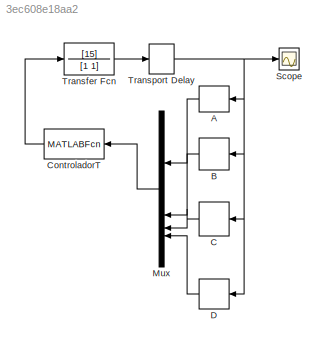
MODEL slx_3ec608e18aa2
KIND model
CONFIG AbsTol = 1e-7
CONFIG EnableMultiTasking = on
CONFIG FixedStep = auto
CONFIG MaxStep = auto
CONFIG MinStep = auto
CONFIG RelTol = 1e-7
CONFIG SampleTimeConstraint = Unconstrained
CONFIG SolverName = ode45
CONFIG StartTime = 0.0
CONFIG StopTime = 10
BLOCK [Relay] A
  OffSwitchValue = 4
  OnSwitchValue = 4
BLOCK [Relay] B
  OffSwitchValue = 2
  OnSwitchValue = 3
BLOCK [Relay] C
  OffSwitchValue = 1
  OnSwitchValue = 2
BLOCK [MATLABFcn] ControladorT
  MATLABFcn = ControladorT
BLOCK [Relay] D
  Description = D
  NameLocation = top
  OffSwitchValue = 0
  OnSwitchValue = 1
  Tag = D
BLOCK [Mux] Mux
  DisplayOption = bar
BLOCK [Scope] Scope
  Floating = off
  NumInputPorts = 1
  ScopeSpecificationString = Simulink.scopes.TimeScopeBlockCfg('CurrentConfiguration', extmgr.ConfigurationSet(extmgr.Configuration('Core','General UI',true),extmgr.Configuration('Core','Source UI',true),extmgr.Configuration('Sources','WiredSimulink',true,'DataLoggingSaveFormat','StructureWithTime','DataLoggingLimitDataPoints',true,'DataLoggingDecimation','1','DataLoggingDecimateData',true),extmgr.Configuration('Visuals','Tim...<+1701ch>
BLOCK [TransferFcn] Transfer Fcn
  Denominator = [1 1]
  Numerator = [15]
BLOCK [TransportDelay] Transport Delay
  DelayTime = 0.5
LINE A:1 -> Mux:1
LINE B:1 -> Mux:2
LINE C:1 -> Mux:3
LINE ControladorT:1 -> Transfer Fcn:1
LINE D:1 -> Mux:4
LINE Mux:1 -> ControladorT:1
LINE Transfer Fcn:1 -> Transport Delay:1
NET Transport Delay:1 -> A:1, B:1, C:1, D:1, Scope:1
note: NET lines group one-source signal fan-out (src -> all destinations, sorted); 1:1 wires keep LINE
